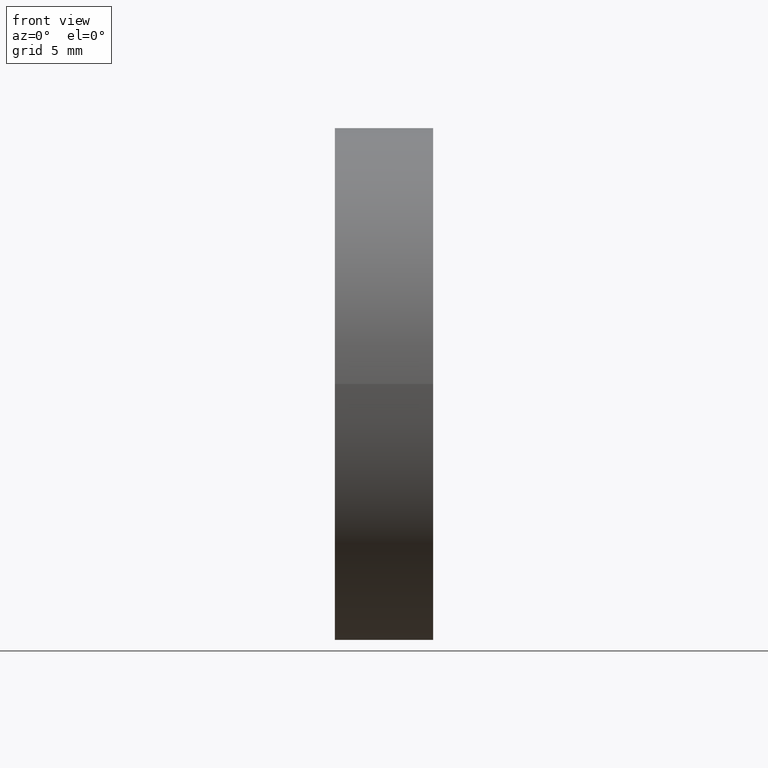
[diagram: clean part render]
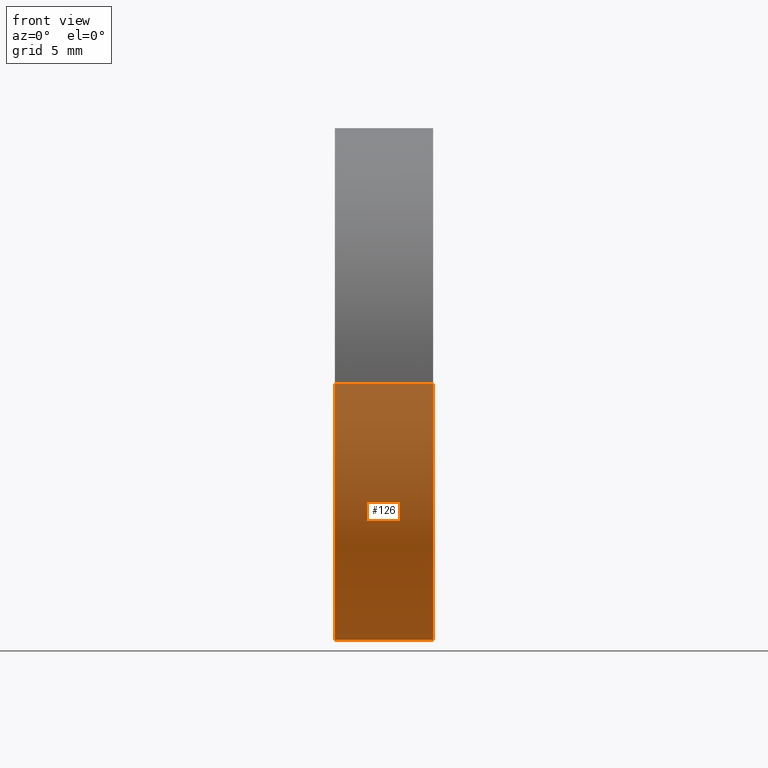
[diagram: same view with one face highlighted and labeled with its STEP entity id]
A machine part, front view. The second image highlights one B-rep face of the part: STEP entity #126.
In plain terms, the highlighted cylindrical surface (partial cylindrical patch) has radius 20 mm, axis along (-1, 0, -0).
Its self-contained STEP definition (entity closure, byte-faithful):
#7 = EDGE_CURVE ( 'NONE', #58, #105, #145, .T. ) ;
#18 = CARTESIAN_POINT ( 'NONE',  ( 110.0147892488423800, 85.15745182658621100, 2.449293598294708100E-015 ) ) ;
#21 = DIRECTION ( 'NONE',  ( -6.938893903907224400E-016, -1.000000000000000000, 0.0000000000000000000 ) ) ;
#28 = DIRECTION ( 'NONE',  ( -1.000000000000000000, 6.488933942079480100E-016, -0.0000000000000000000 ) ) ;
#29 = ORIENTED_EDGE ( 'NONE', *, *, #124, .T. ) ;
#39 = CARTESIAN_POINT ( 'NONE',  ( 114.9754472601862100, 65.15745182658619700, 0.0000000000000000000 ) ) ;
#41 = VECTOR ( 'NONE', #75, 1000.000000000000000 ) ;
#42 = DIRECTION ( 'NONE',  ( -6.938893903907224400E-016, -1.000000000000000000, 0.0000000000000000000 ) ) ;
#57 = VECTOR ( 'NONE', #85, 1000.000000000000000 ) ;
#58 = VERTEX_POINT ( 'NONE', #115 ) ;
#67 = LINE ( 'NONE', #118, #41 ) ;
#68 = AXIS2_PLACEMENT_3D ( 'NONE', #110, #82, #21 ) ;
#71 = VERTEX_POINT ( 'NONE', #130 ) ;
#72 = DIRECTION ( 'NONE',  ( -1.000000000000000000, 6.488933942079480100E-016, -0.0000000000000000000 ) ) ;
#73 = CARTESIAN_POINT ( 'NONE',  ( 114.9754472601862300, 85.15745182658619700, 2.449293598294710100E-015 ) ) ;
#75 = DIRECTION ( 'NONE',  ( -1.000000000000000000, 6.488933942079480100E-016, -0.0000000000000000000 ) ) ;
#78 = ORIENTED_EDGE ( 'NONE', *, *, #103, .F. ) ;
#82 = DIRECTION ( 'NONE',  ( -1.000000000000000000, 6.488933942079480100E-016, -0.0000000000000000000 ) ) ;
#84 = AXIS2_PLACEMENT_3D ( 'NONE', #129, #28, #42 ) ;
#85 = DIRECTION ( 'NONE',  ( -1.000000000000000000, 6.488933942079480100E-016, -0.0000000000000000000 ) ) ;
#88 = CIRCLE ( 'NONE', #154, 20.00000000000000400 ) ;
#91 = FACE_OUTER_BOUND ( 'NONE', #148, .T. ) ;
#103 = EDGE_CURVE ( 'NONE', #58, #122, #117, .T. ) ;
#104 = CARTESIAN_POINT ( 'NONE',  ( 122.6411110105041300, 45.15745356914861500, 0.0000000000000000000 ) ) ;
#105 = VERTEX_POINT ( 'NONE', #104 ) ;
#107 = ORIENTED_EDGE ( 'NONE', *, *, #151, .F. ) ;
#110 = CARTESIAN_POINT ( 'NONE',  ( 122.6411110105041300, 65.15745182658618300, 0.0000000000000000000 ) ) ;
#115 = CARTESIAN_POINT ( 'NONE',  ( 122.6411110105041500, 85.15745182658621100, 2.449293384892355000E-015 ) ) ;
#117 = LINE ( 'NONE', #18, #57 ) ;
#118 = CARTESIAN_POINT ( 'NONE',  ( 110.0147892488423500, 45.15745182658618300, 0.0000000000000000000 ) ) ;
#119 = DIRECTION ( 'NONE',  ( -6.938893903907227400E-016, -1.000000000000000000, 0.0000000000000000000 ) ) ;
#122 = VERTEX_POINT ( 'NONE', #73 ) ;
#124 = EDGE_CURVE ( 'NONE', #105, #71, #67, .T. ) ;
#126 = ADVANCED_FACE ( 'NONE', ( #91 ), #161, .T. ) ;
#129 = CARTESIAN_POINT ( 'NONE',  ( 110.0147892488423600, 65.15745182658619700, 0.0000000000000000000 ) ) ;
#130 = CARTESIAN_POINT ( 'NONE',  ( 114.9754472601862000, 45.15745182658619000, 0.0000000000000000000 ) ) ;
#142 = ORIENTED_EDGE ( 'NONE', *, *, #7, .T. ) ;
#145 = CIRCLE ( 'NONE', #68, 20.00000000000001100 ) ;
#148 = EDGE_LOOP ( 'NONE', ( #78, #142, #29, #107 ) ) ;
#151 = EDGE_CURVE ( 'NONE', #122, #71, #88, .T. ) ;
#154 = AXIS2_PLACEMENT_3D ( 'NONE', #39, #72, #119 ) ;
#161 = CYLINDRICAL_SURFACE ( 'NONE', #84, 20.00000000000001100 ) ;